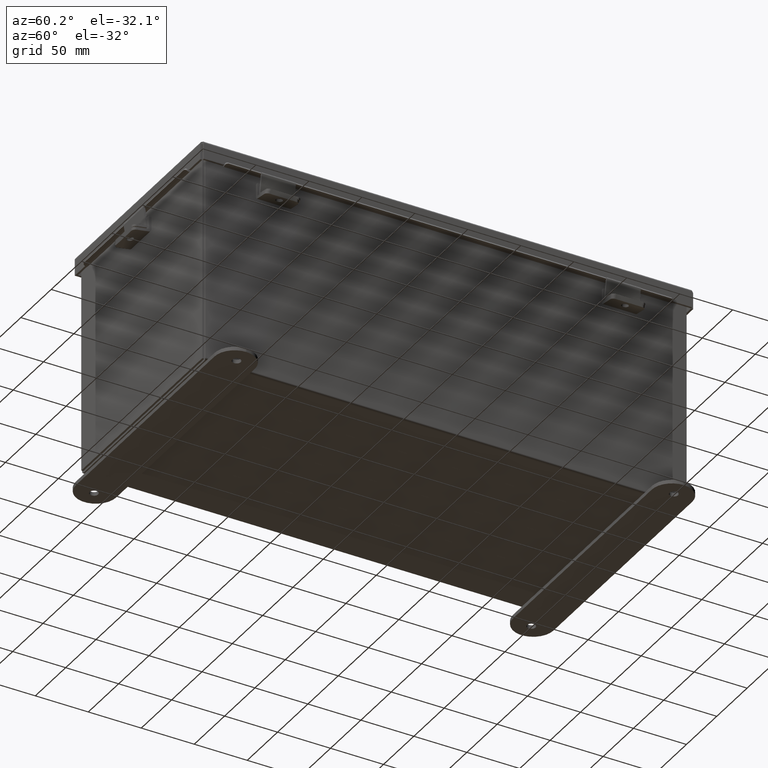
[diagram: clean part render]
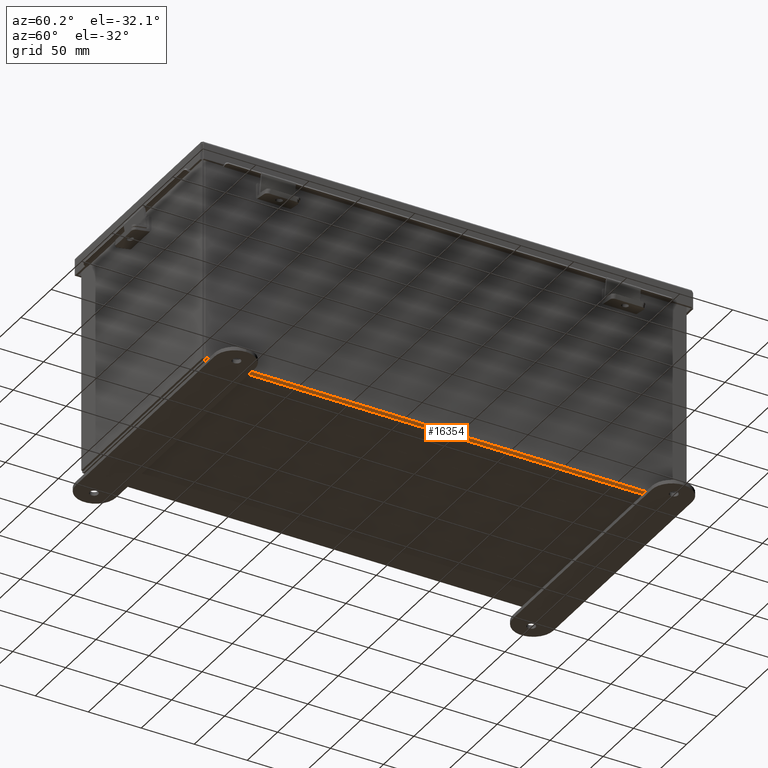
[diagram: same view with one face highlighted and labeled with its STEP entity id]
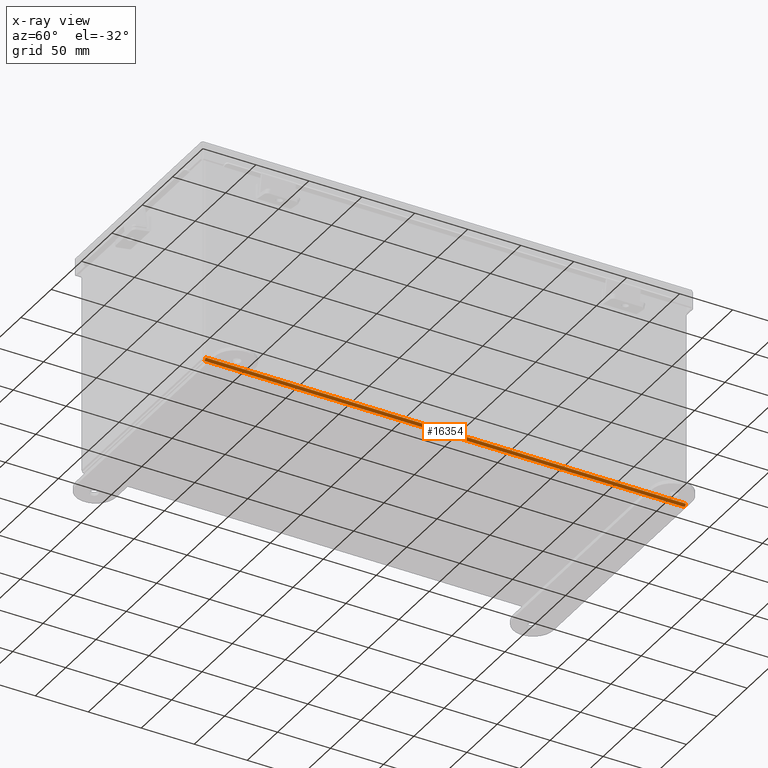
[diagram: x-ray of the same camera — body ghosted, the highlighted face saturated]
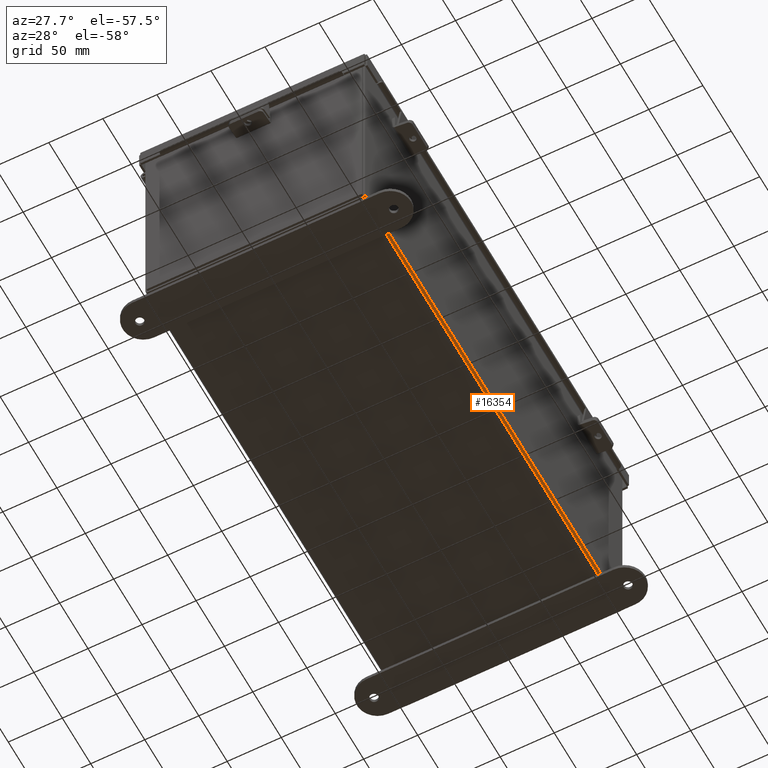
[diagram: same view with one face highlighted and labeled with its STEP entity id]
A machine part, auxiliary view. The second image highlights one B-rep face of the part: STEP entity #16354.
The next image is the same camera in x-ray: the body ghosted, the highlighted face saturated — about 0% of this face is hidden behind the body in this view.
A second angle (auxiliary view) of the same face is appended — the face is thin or edge-on in the first view.
In plain terms, the highlighted cylindrical surface (edge-blend (fillet) strip) has radius 2.2276 mm, axis along (0, 1, 0).
Its self-contained STEP definition (entity closure, byte-faithful):
#47 = VERTEX_POINT ( 'NONE', #11056 ) ;
#533 = DIRECTION ( 'NONE',  ( -0.0000000000000000000, -1.000000000000000000, -0.0000000000000000000 ) ) ;
#897 = AXIS2_PLACEMENT_3D ( 'NONE', #2058, #5059, #6546 ) ;
#1829 = CARTESIAN_POINT ( 'NONE',  ( 3.912300000000000100, 8.925300000000000000, -0.07469999999999994700 ) ) ;
#2058 = CARTESIAN_POINT ( 'NONE',  ( 3.912300000000000100, 8.925300000000000000, 0.01300000000000015000 ) ) ;
#2132 = VERTEX_POINT ( 'NONE', #9283 ) ;
#2187 = AXIS2_PLACEMENT_3D ( 'NONE', #7092, #17445, #8611 ) ;
#2815 = EDGE_CURVE ( 'NONE', #13986, #18826, #18341, .T. ) ;
#4343 = DIRECTION ( 'NONE',  ( -0.0000000000000000000, -1.000000000000000000, -0.0000000000000000000 ) ) ;
#4894 = EDGE_CURVE ( 'NONE', #2132, #13986, #7913, .T. ) ;
#5059 = DIRECTION ( 'NONE',  ( 0.0000000000000000000, 1.000000000000000000, 0.0000000000000000000 ) ) ;
#5639 = CARTESIAN_POINT ( 'NONE',  ( 3.912300000000000100, 8.925299999999998200, -0.07469999999999994700 ) ) ;
#6546 = DIRECTION ( 'NONE',  ( 1.000000000000000000, 0.0000000000000000000, -3.480030137311043200E-015 ) ) ;
#7018 = EDGE_CURVE ( 'NONE', #2132, #47, #16404, .T. ) ;
#7092 = CARTESIAN_POINT ( 'NONE',  ( 3.912300000000000100, -8.925300000000001800, 0.01300000000000015000 ) ) ;
#7294 = CIRCLE ( 'NONE', #2187, 0.08770000000000009700 ) ;
#7913 = CIRCLE ( 'NONE', #9101, 0.08770000000000009700 ) ;
#8404 = ORIENTED_EDGE ( 'NONE', *, *, #2815, .F. ) ;
#8611 = DIRECTION ( 'NONE',  ( 0.0000000000000000000, 0.0000000000000000000, 1.000000000000000000 ) ) ;
#8774 = CARTESIAN_POINT ( 'NONE',  ( 4.000000000000000900, -8.925300000000001800, 0.01299999999999984300 ) ) ;
#8783 = EDGE_CURVE ( 'NONE', #18826, #47, #7294, .T. ) ;
#9101 = AXIS2_PLACEMENT_3D ( 'NONE', #17365, #17315, #17049 ) ;
#9283 = CARTESIAN_POINT ( 'NONE',  ( 4.000000000000000900, 8.925299999999998200, 0.01299999999999984300 ) ) ;
#10765 = ORIENTED_EDGE ( 'NONE', *, *, #4894, .F. ) ;
#10991 = VECTOR ( 'NONE', #533, 39.37007874015748100 ) ;
#11056 = CARTESIAN_POINT ( 'NONE',  ( 4.000000000000000900, -8.925300000000001800, 0.01299999999999984300 ) ) ;
#12551 = VECTOR ( 'NONE', #4343, 39.37007874015748100 ) ;
#13986 = VERTEX_POINT ( 'NONE', #5639 ) ;
#14010 = ORIENTED_EDGE ( 'NONE', *, *, #7018, .T. ) ;
#15049 = CYLINDRICAL_SURFACE ( 'NONE', #897, 0.08770000000000026400 ) ;
#16354 = ADVANCED_FACE ( 'NONE', ( #18970 ), #15049, .T. ) ;
#16404 = LINE ( 'NONE', #8774, #12551 ) ;
#17049 = DIRECTION ( 'NONE',  ( 0.0000000000000000000, 0.0000000000000000000, 1.000000000000000000 ) ) ;
#17214 = ORIENTED_EDGE ( 'NONE', *, *, #8783, .F. ) ;
#17315 = DIRECTION ( 'NONE',  ( 0.0000000000000000000, 1.000000000000000000, 0.0000000000000000000 ) ) ;
#17365 = CARTESIAN_POINT ( 'NONE',  ( 3.912300000000000100, 8.925299999999998200, 0.01300000000000015000 ) ) ;
#17445 = DIRECTION ( 'NONE',  ( -0.0000000000000000000, -1.000000000000000000, -0.0000000000000000000 ) ) ;
#18341 = LINE ( 'NONE', #1829, #10991 ) ;
#18508 = CARTESIAN_POINT ( 'NONE',  ( 3.912300000000000100, -8.925300000000001800, -0.07470000000000000300 ) ) ;
#18520 = EDGE_LOOP ( 'NONE', ( #8404, #10765, #14010, #17214 ) ) ;
#18826 = VERTEX_POINT ( 'NONE', #18508 ) ;
#18970 = FACE_OUTER_BOUND ( 'NONE', #18520, .T. ) ;